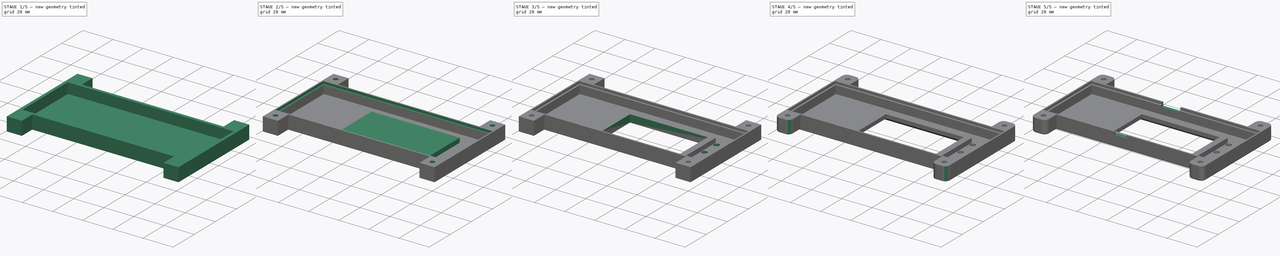
[diagram: build sequence overview — one tinted view per stage of 5, left to right]
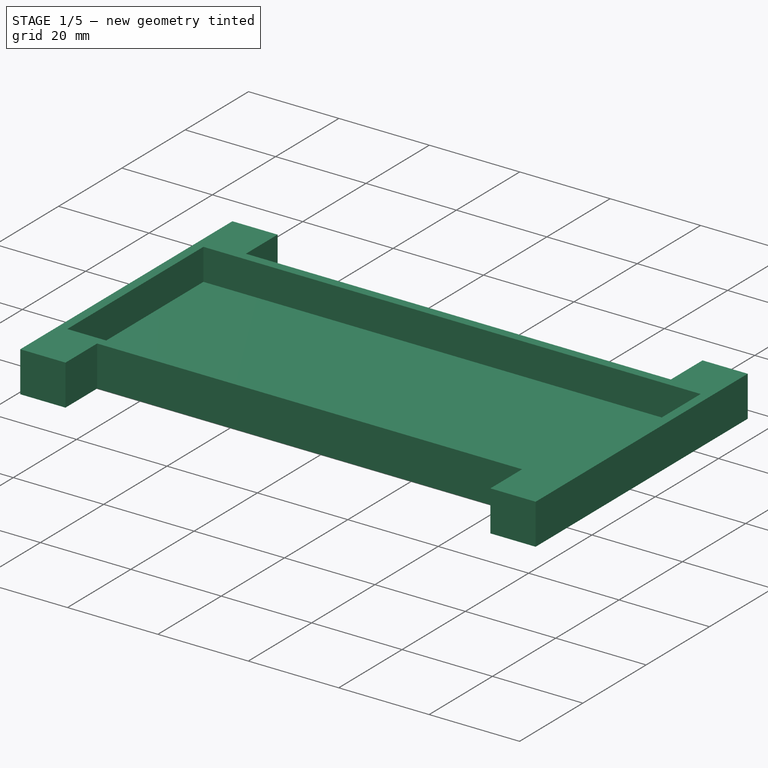
[diagram: stage 1 of 5 — iso view after this stage's code; geometry added in this stage tinted green]
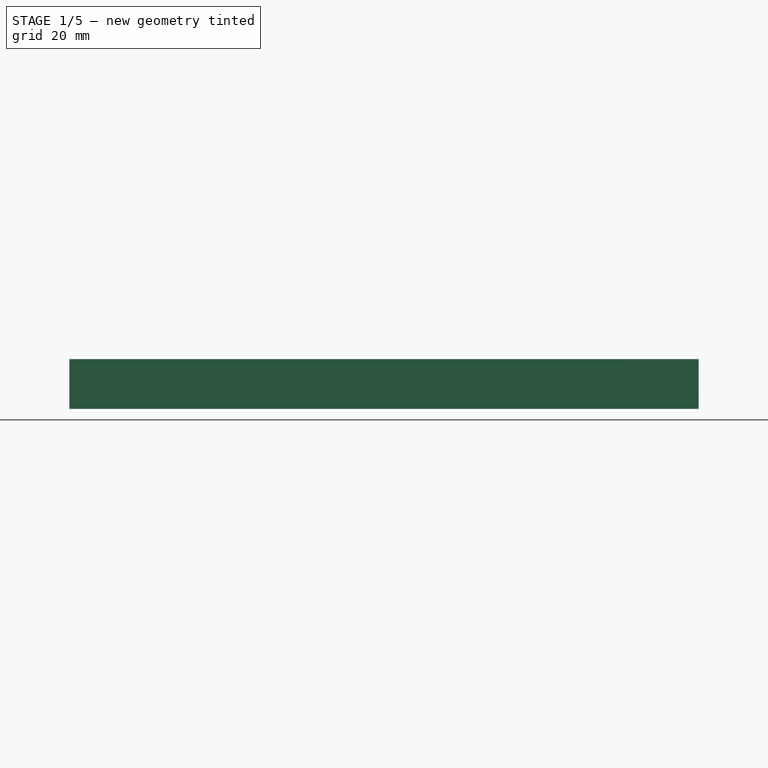
[diagram: stage 1 of 5 — front view after this stage's code; geometry added in this stage tinted green]
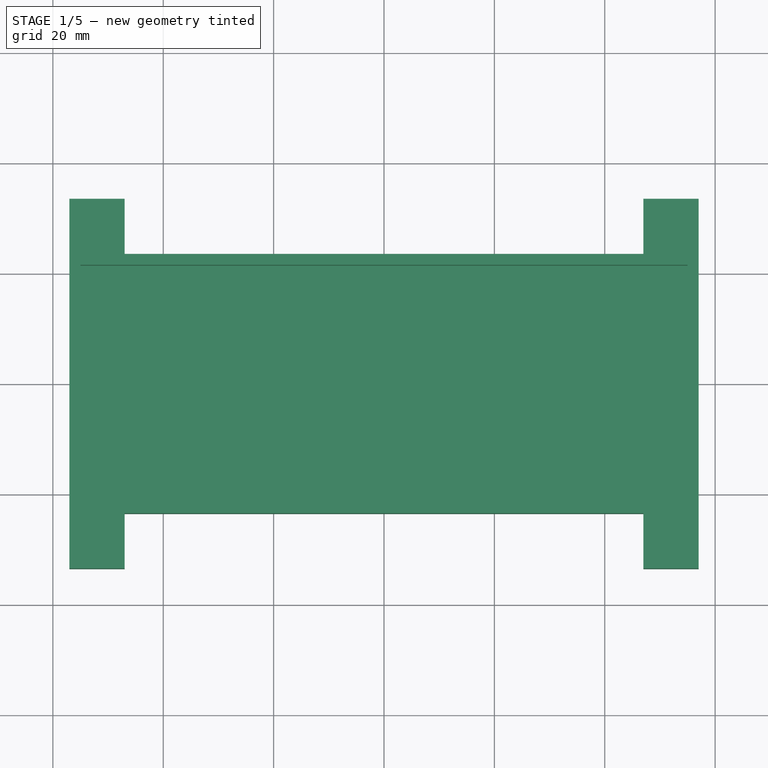
[diagram: stage 1 of 5 — top view after this stage's code; geometry added in this stage tinted green]
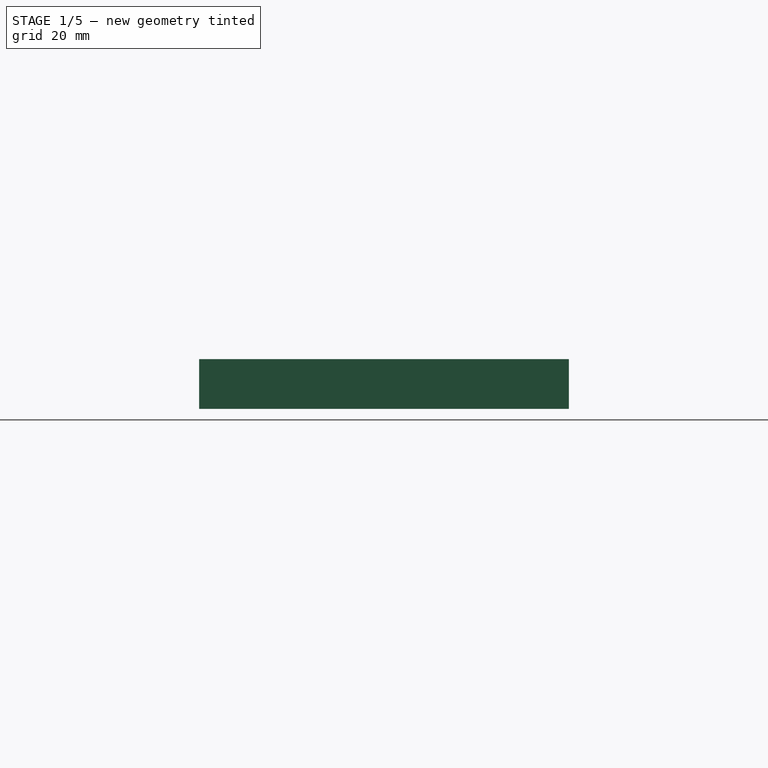
[diagram: stage 1 of 5 — right view after this stage's code; geometry added in this stage tinted green]
FCSTD DOCUMENT  (FreeCAD 1.0R38641 +678 (Git))
Label: BertheVario213_capot-v4
License: All rights reserved
LicenseURL: https://en.wikipedia.org/wiki/All_rights_reserved
objects: Sketcher::SketchObject×11, PartDesign::Pocket×7, PartDesign::Fillet×5, PartDesign::Pad×4, PartDesign::Chamfer×3, PartDesign::Thickness×1, PartDesign::Body×1
note: 83 computed .brp shape members not serialized (recipe doc carries the construction recipe); baked Part::Feature solids carry a one-line shape summary decoded from their .brp

FEATURE [Sketcher::SketchObject] Sketch  label="esquiise corps"
  ArcFitTolerance = 1e-06
  FullyConstrained = true
  MakeInternals = false
  sketch-geometry (4):
    g0: LineSegment StartX=-57 StartY=23.5 StartZ=0 EndX=-57 EndY=-23.5 EndZ=0
    g1: LineSegment StartX=-57 StartY=-23.5 StartZ=0 EndX=57 EndY=-23.5 EndZ=0
    g2: LineSegment StartX=57 StartY=-23.5 StartZ=0 EndX=57 EndY=23.5 EndZ=0
    g3: LineSegment StartX=57 StartY=23.5 StartZ=0 EndX=-57 EndY=23.5 EndZ=0
  constraints (11):
    c: Coincident(g0,g1)
    c: Coincident(g1,g2)
    c: Coincident(g2,g3)
    c: Coincident(g3,g0)
    c: Vertical(g0)
    c: Vertical(g2)
    c: Horizontal(g1)
    c: Horizontal(g3)
    c: DistanceY(g0,g0) = 47
    c: DistanceX(g3,g3) = 114
    c: Symmetric(g0,g2,g-1)
FEATURE [PartDesign::Pad] Pad  label="protrusion corps"
  Direction = (0,0,1)
  Length = 9
  Length2 = 10
  Profile = -> Sketch
  ReferenceAxis = -> Sketch [N_Axis]
  Refine = true
  Suppressed = false
  Type = 0
FEATURE [PartDesign::Thickness] Thickness  label="cavite corps"
  Base = -> Pad [Face6]
  BaseFeature = -> Pad
  Intersection = false
  Join = 0
  Mode = 0
  Refine = true
  Reversed = true
  SupportTransform = false
  Suppressed = false
  Value = 2
FEATURE [Sketcher::SketchObject] Sketch004  label="esquisse embase vis 3-4"
  ArcFitTolerance = 1e-06
  FullyConstrained = true
  MakeInternals = false
  MapMode = 5
  Placement = pos=(0,-23.5,0) rot=(1,0,0;1.5708rad)
  sketch-geometry (8):
    g0: LineSegment StartX=-57 StartY=9 StartZ=0 EndX=-57 EndY=0 EndZ=0
    g1: LineSegment StartX=-57 StartY=0 StartZ=0 EndX=-47 EndY=0 EndZ=0
    g2: LineSegment StartX=-47 StartY=0 StartZ=0 EndX=-47 EndY=9 EndZ=0
    g3: LineSegment StartX=-47 StartY=9 StartZ=0 EndX=-57 EndY=9 EndZ=0
    g4: LineSegment StartX=47 StartY=9 StartZ=0 EndX=47 EndY=0 EndZ=0
    g5: LineSegment StartX=47 StartY=0 StartZ=0 EndX=57 EndY=0 EndZ=0
    g6: LineSegment StartX=57 StartY=0 StartZ=0 EndX=57 EndY=9 EndZ=0
    g7: LineSegment StartX=57 StartY=9 StartZ=0 EndX=47 EndY=9 EndZ=0
  constraints (22):
    c: Coincident(g0,g1)
    c: Coincident(g1,g2)
    c: Coincident(g2,g3)
    c: Coincident(g3,g0)
    c: Vertical(g0)
    c: Vertical(g2)
    c: Horizontal(g1)
    c: Horizontal(g3)
    c: Coincident(g4,g5)
    c: Coincident(g5,g6)
    c: Coincident(g6,g7)
    c: Coincident(g7,g4)
    c: Vertical(g4)
    c: Vertical(g6)
    c: Horizontal(g5)
    c: Horizontal(g7)
    c: Equal(g3,g7)
    c: Equal(g2,g4)
    c: Distance(g3,g3) = 10
    c: DistanceY(g2,g2) = 9
    c: Coincident(g0,g-4)
    c: Coincident(g5,g-3)
FEATURE [PartDesign::Pad] Pad001  label="protusion embase vis 3-4"
  BaseFeature = -> Thickness
  Direction = (0,-1,2e-16)
  Length = 10
  Length2 = 10
  Profile = -> Sketch004
  ReferenceAxis = -> Sketch004 [N_Axis]
  Refine = true
  Suppressed = false
  Type = 0
FEATURE [Sketcher::SketchObject] Sketch005  label="esquisse embase vis 1-2"
  ArcFitTolerance = 1e-06
  AttachmentSupport = -> [Pad001]
  ExternalGeometry = -> [Pad001]
  FullyConstrained = true
  MakeInternals = false
  MapMode = 5
  Placement = pos=(0,23.5,0) rot=(0,0.707107,0.707107;3.14159rad)
  sketch-geometry (8):
    g0: LineSegment StartX=-57 StartY=9 StartZ=0 EndX=-57 EndY=0 EndZ=0
    g1: LineSegment StartX=-57 StartY=0 StartZ=0 EndX=-47 EndY=0 EndZ=0
    g2: LineSegment StartX=-47 StartY=0 StartZ=0 EndX=-47 EndY=9 EndZ=0
    g3: LineSegment StartX=-47 StartY=9 StartZ=0 EndX=-57 EndY=9 EndZ=0
    g4: LineSegment StartX=47 StartY=9 StartZ=0 EndX=47 EndY=0 EndZ=0
    g5: LineSegment StartX=47 StartY=0 StartZ=0 EndX=57 EndY=0 EndZ=0
    g6: LineSegment StartX=57 StartY=0 StartZ=0 EndX=57 EndY=9 EndZ=0
    g7: LineSegment StartX=57 StartY=9 StartZ=0 EndX=47 EndY=9 EndZ=0
  constraints (22):
    c: Coincident(g0,g1)
    c: Coincident(g1,g2)
    c: Coincident(g2,g3)
    c: Coincident(g3,g0)
    c: Vertical(g0)
    c: Vertical(g2)
    c: Horizontal(g1)
    c: Horizontal(g3)
    c: Coincident(g4,g5)
    c: Coincident(g5,g6)
    c: Coincident(g6,g7)
    c: Coincident(g7,g4)
    c: Vertical(g4)
    c: Vertical(g6)
    c: Horizontal(g5)
    c: Horizontal(g7)
    c: Equal(g3,g7)
    c: Equal(g2,g4)
    c: DistanceY(g2,g2) = 9
    c: DistanceX(g3,g3) = 10
    c: Coincident(g0,g-4)
    c: Coincident(g5,g-3)
FEATURE [PartDesign::Pad] Pad002  label="protusion embase vis 1-2"
  BaseFeature = -> Pad001
  Direction = (0,1,-2e-16)
  Length = 10
  Length2 = 10
  Profile = -> Sketch005
  ReferenceAxis = -> Sketch005 [N_Axis]
  Refine = true
  Suppressed = false
  Type = 0
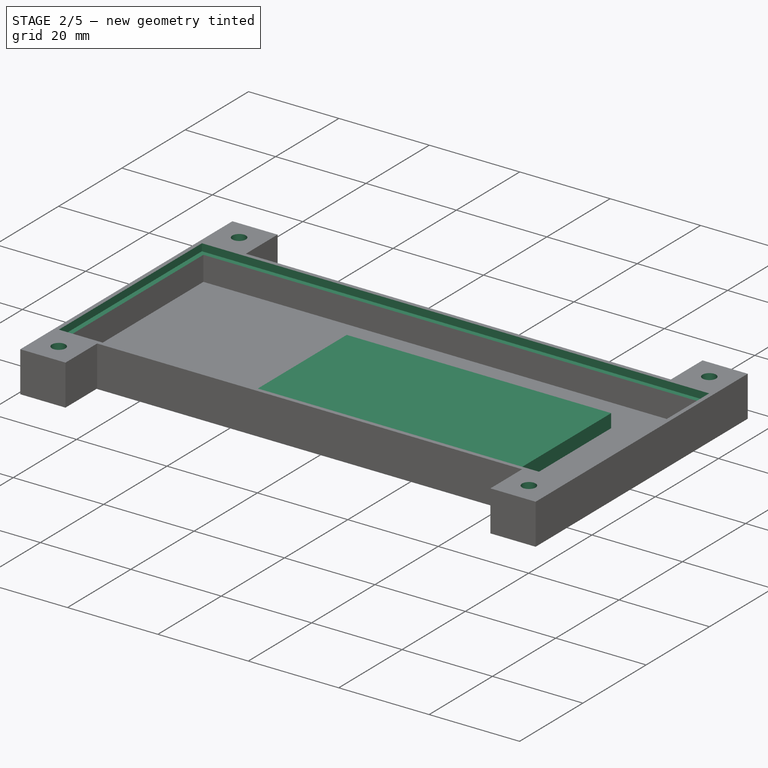
[diagram: stage 2 of 5 — iso view after this stage's code; geometry added in this stage tinted green]
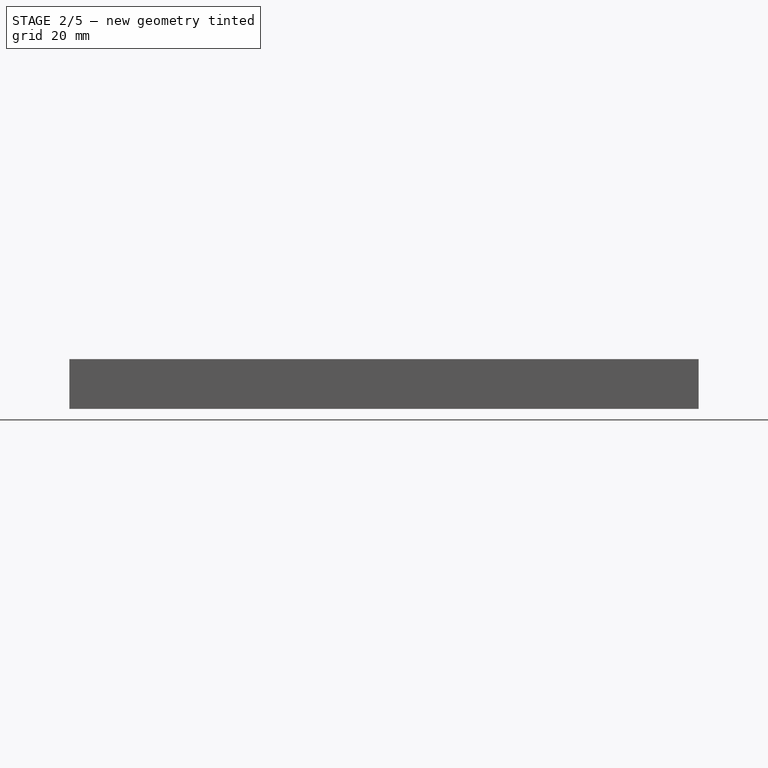
[diagram: stage 2 of 5 — front view after this stage's code; geometry added in this stage tinted green]
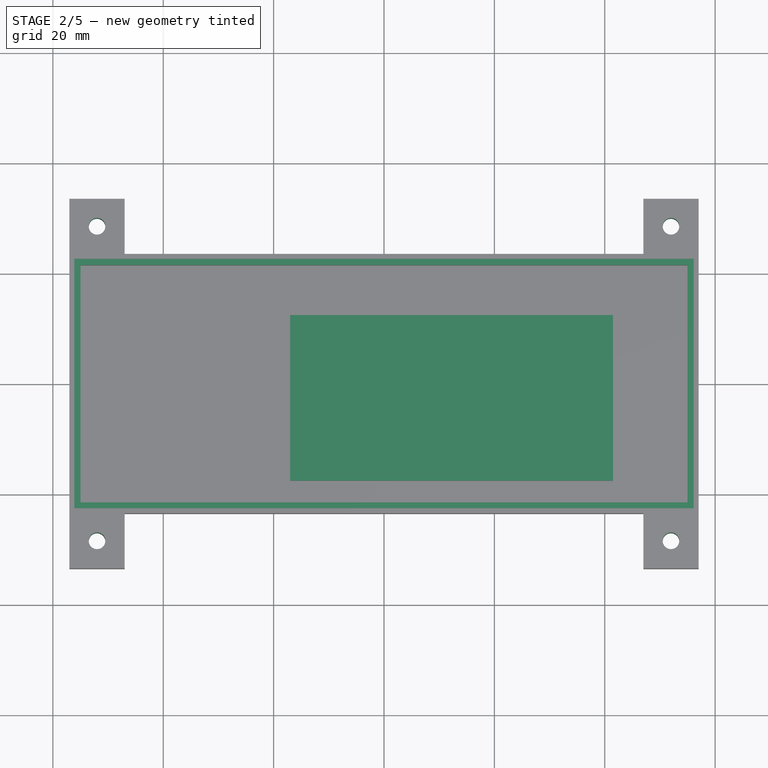
[diagram: stage 2 of 5 — top view after this stage's code; geometry added in this stage tinted green]
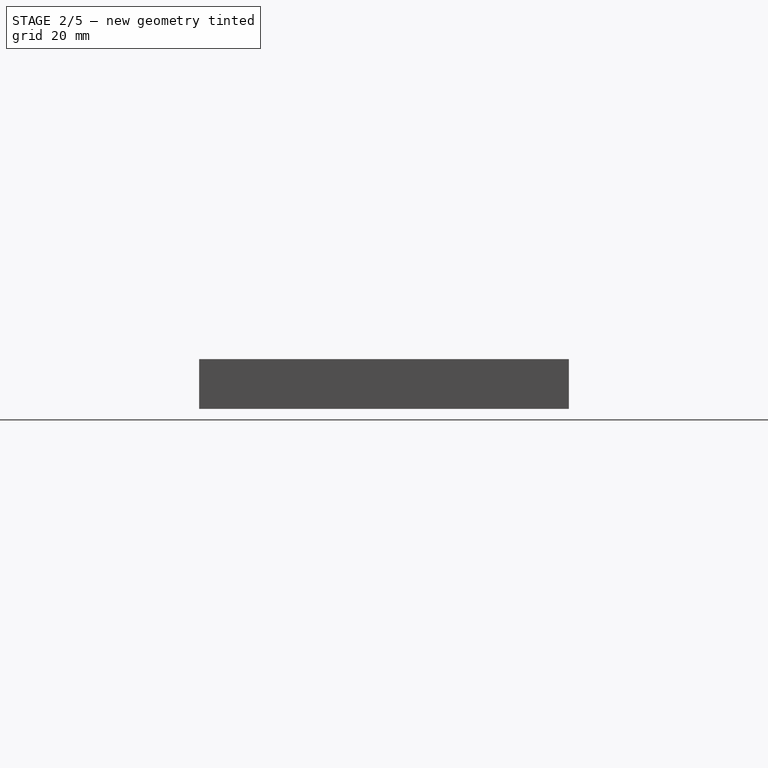
[diagram: stage 2 of 5 — right view after this stage's code; geometry added in this stage tinted green]
FEATURE [Sketcher::SketchObject] Sketch006  label="esquisse rebord corps"
  ArcFitTolerance = 1e-06
  AttachmentSupport = -> [Pad002]
  ExternalGeometry = -> [Pad002]
  FullyConstrained = true
  MakeInternals = false
  MapMode = 5
  Placement = pos=(0,0,9) rot=(0,0,1;0rad)
  sketch-geometry (4):
    g0: LineSegment StartX=-56.1 StartY=22.6 StartZ=0 EndX=-56.1 EndY=-22.6 EndZ=0
    g1: LineSegment StartX=-56.1 StartY=-22.6 StartZ=0 EndX=56.1 EndY=-22.6 EndZ=0
    g2: LineSegment StartX=56.1 StartY=-22.6 StartZ=0 EndX=56.1 EndY=22.6 EndZ=0
    g3: LineSegment StartX=56.1 StartY=22.6 StartZ=0 EndX=-56.1 EndY=22.6 EndZ=0
  constraints (11):
    c: Coincident(g0,g1)
    c: Coincident(g1,g2)
    c: Coincident(g2,g3)
    c: Coincident(g3,g0)
    c: Vertical(g0)
    c: Vertical(g2)
    c: Horizontal(g1)
    c: Horizontal(g3)
    c: Symmetric(g2,g0,g-1)
    c: DistanceY(g-6,g0) = 1.1
    c: DistanceX(g0,g-4) = 1.1
FEATURE [PartDesign::Pocket] Pocket  label="cavite rebord corps"
  BaseFeature = -> Pad002
  Direction = (0,0,-1)
  Length = 1.6
  Length2 = 5
  Profile = -> Sketch006
  ReferenceAxis = -> Sketch006 [N_Axis]
  Refine = true
  Suppressed = false
  Type = 0
FEATURE [Sketcher::SketchObject] Sketch007  label="esquisse trou vis"
  ArcFitTolerance = 1e-06
  AttachmentSupport = -> [Pocket]
  ExternalGeometry = -> [Pocket]
  FullyConstrained = true
  MakeInternals = false
  MapMode = 5
  Placement = pos=(0,0,-1e-16) rot=(1,0,0;3.14159rad)
  sketch-geometry (4):
    g0: Circle CenterX=-52 CenterY=28.5 CenterZ=0 NormalX=0 NormalY=0 NormalZ=1 AngleXU=0 Radius=1.5
    g1: Circle CenterX=52 CenterY=28.5 CenterZ=0 NormalX=0 NormalY=0 NormalZ=1 AngleXU=0 Radius=1.5
    g2: Circle CenterX=52 CenterY=-28.5 CenterZ=0 NormalX=0 NormalY=0 NormalZ=1 AngleXU=0 Radius=1.5
    g3: Circle CenterX=-52 CenterY=-28.5 CenterZ=0 NormalX=0 NormalY=0 NormalZ=1 AngleXU=0 Radius=1.5
  constraints (8):
    c: Equal(g0,g1)
    c: Equal(g1,g2)
    c: Equal(g2,g3)
    c: Diameter(g0) = 3
    c: Symmetric(g-3,g-4,g0)
    c: Symmetric(g-9,g-10,g3)
    c: Symmetric(g-7,g-8,g2)
    c: Symmetric(g-5,g-6,g1)
FEATURE [PartDesign::Pocket] Pocket001  label="trou vis"
  BaseFeature = -> Pocket
  Direction = (0,0,1)
  Length = 9
  Length2 = 5
  Profile = -> Sketch007
  ReferenceAxis = -> Sketch007 [N_Axis]
  Refine = true
  Suppressed = false
  Type = 0
FEATURE [Sketcher::SketchObject] Sketch008  label="esquisse trou ecran"
  ArcFitTolerance = 1e-06
  AttachmentSupport = -> [Pocket001]
  ExternalGeometry = -> [Pocket001]
  FullyConstrained = true
  MakeInternals = false
  MapMode = 5
  Placement = pos=(0,0,-1e-16) rot=(1,0,0;3.14159rad)
  sketch-geometry (4):
    g0: LineSegment StartX=-14 StartY=15.5 StartZ=0 EndX=-14 EndY=-10.5 EndZ=0
    g1: LineSegment StartX=-14 StartY=-10.5 StartZ=0 EndX=37.5 EndY=-10.5 EndZ=0
    g2: LineSegment StartX=37.5 StartY=-10.5 StartZ=0 EndX=37.5 EndY=15.5 EndZ=0
    g3: LineSegment StartX=37.5 StartY=15.5 StartZ=0 EndX=-14 EndY=15.5 EndZ=0
  constraints (12):
    c: Coincident(g0,g1)
    c: Coincident(g1,g2)
    c: Coincident(g2,g3)
    c: Coincident(g3,g0)
    c: Vertical(g0)
    c: Vertical(g2)
    c: Horizontal(g1)
    c: Horizontal(g3)
    c: DistanceX(g1,g1) = 51.5
    c: DistanceY(g0,g0) = 26
    c: DistanceX(g0,g-3) = 71
    c: DistanceY(g1,g-5) = 34
FEATURE [PartDesign::Pocket] Pocket002  label="trou ecran"
  BaseFeature = -> Pocket001
  Direction = (0,0,1)
  Length = 7
  Length2 = 5
  Profile = -> Sketch008
  ReferenceAxis = -> Sketch008 [N_Axis]
  Refine = true
  Suppressed = false
  Type = 0
FEATURE [Sketcher::SketchObject] Sketch009  label="esquisse rebord ecran"
  ArcFitTolerance = 1e-06
  AttachmentSupport = -> [Pocket002]
  ExternalGeometry = -> [Pocket002]
  FullyConstrained = true
  MakeInternals = false
  MapMode = 5
  Placement = pos=(0,0,2) rot=(0,0,1;0rad)
  sketch-geometry (4):
    g0: LineSegment StartX=-17 StartY=12.5 StartZ=0 EndX=-17 EndY=-17.5 EndZ=0
    g1: LineSegment StartX=-17 StartY=-17.5 StartZ=0 EndX=41.5 EndY=-17.5 EndZ=0
    g2: LineSegment StartX=41.5 StartY=-17.5 StartZ=0 EndX=41.5 EndY=12.5 EndZ=0
    g3: LineSegment StartX=41.5 StartY=12.5 StartZ=0 EndX=-17 EndY=12.5 EndZ=0
  constraints (12):
    c: Coincident(g0,g1)
    c: Coincident(g1,g2)
    c: Coincident(g2,g3)
    c: Coincident(g3,g0)
    c: Vertical(g0)
    c: Vertical(g2)
    c: Horizontal(g1)
    c: Horizontal(g3)
    c: DistanceX(g0,g-4) = 3
    c: DistanceX(g-6,g2) = 4
    c: DistanceY(g0,g-5) = 2
    c: DistanceY(g-6,g2) = 2
FEATURE [PartDesign::Pad] Pad003  label="rebord ecran"
  BaseFeature = -> Pocket002
  Direction = (0,0,1)
  Length = 3
  Length2 = 10
  Profile = -> Sketch009
  ReferenceAxis = -> Sketch009 [N_Axis]
  Refine = true
  Suppressed = false
  Type = 0
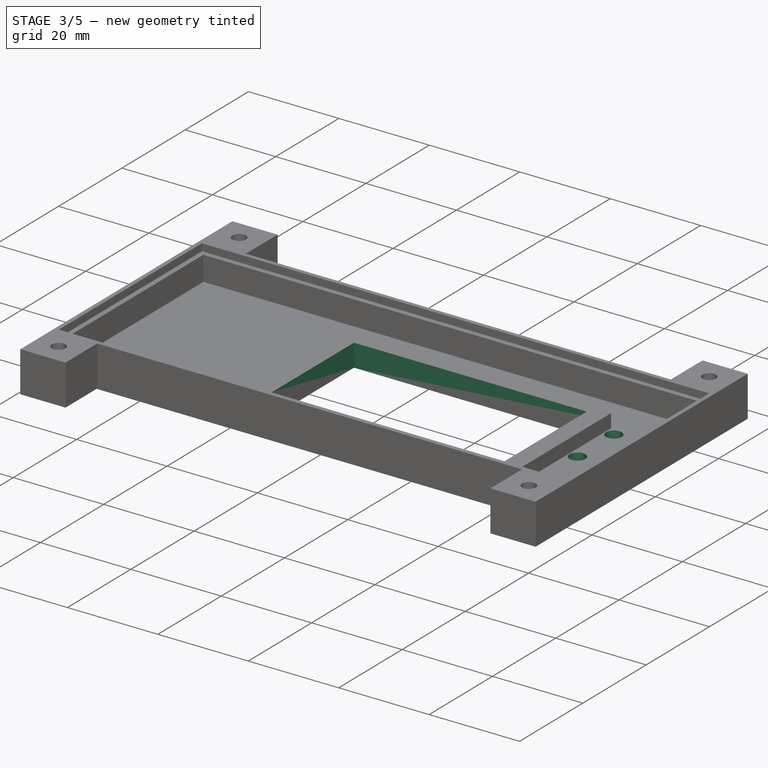
[diagram: stage 3 of 5 — iso view after this stage's code; geometry added in this stage tinted green]
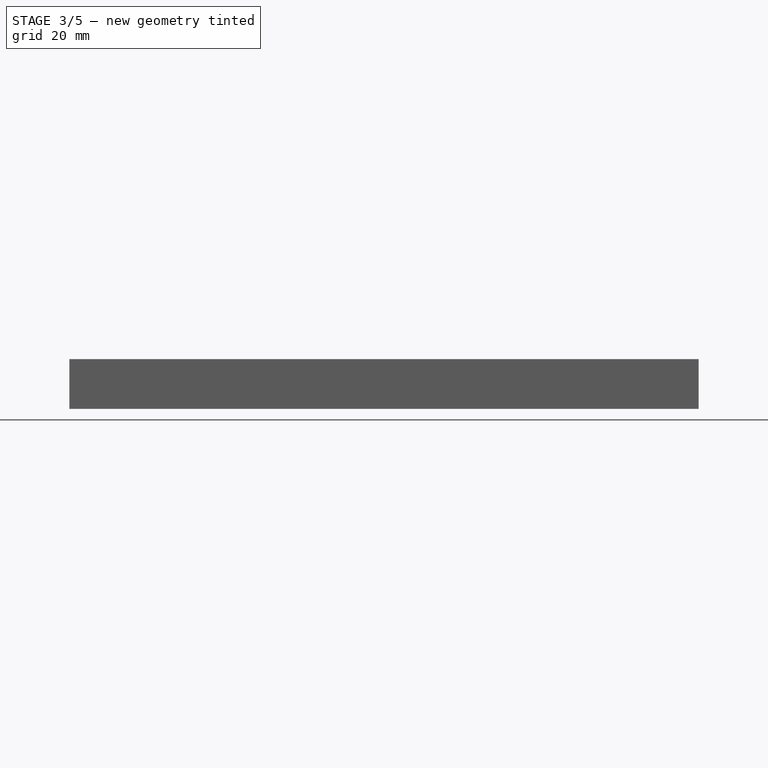
[diagram: stage 3 of 5 — front view after this stage's code; geometry added in this stage tinted green]
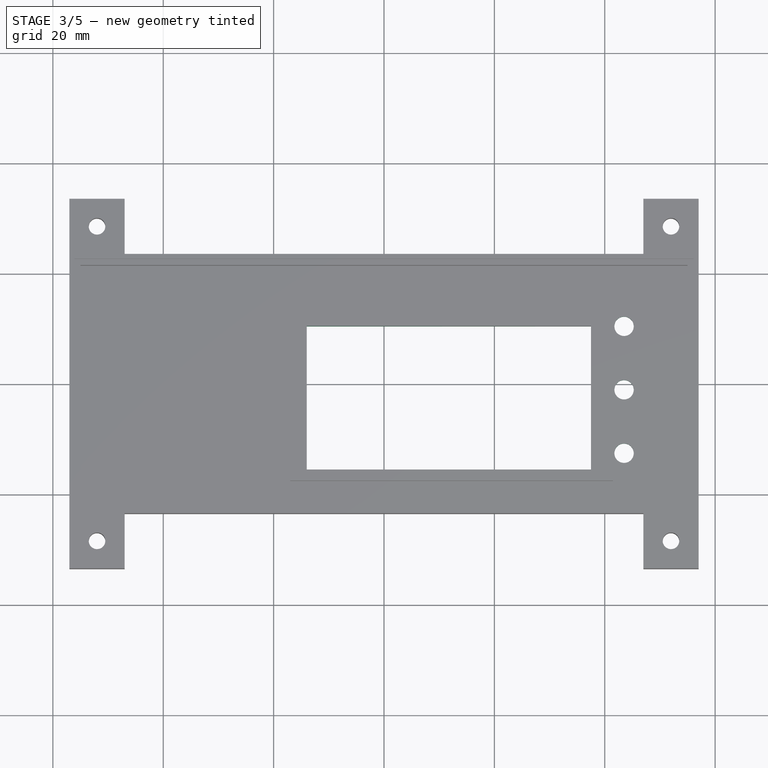
[diagram: stage 3 of 5 — top view after this stage's code; geometry added in this stage tinted green]
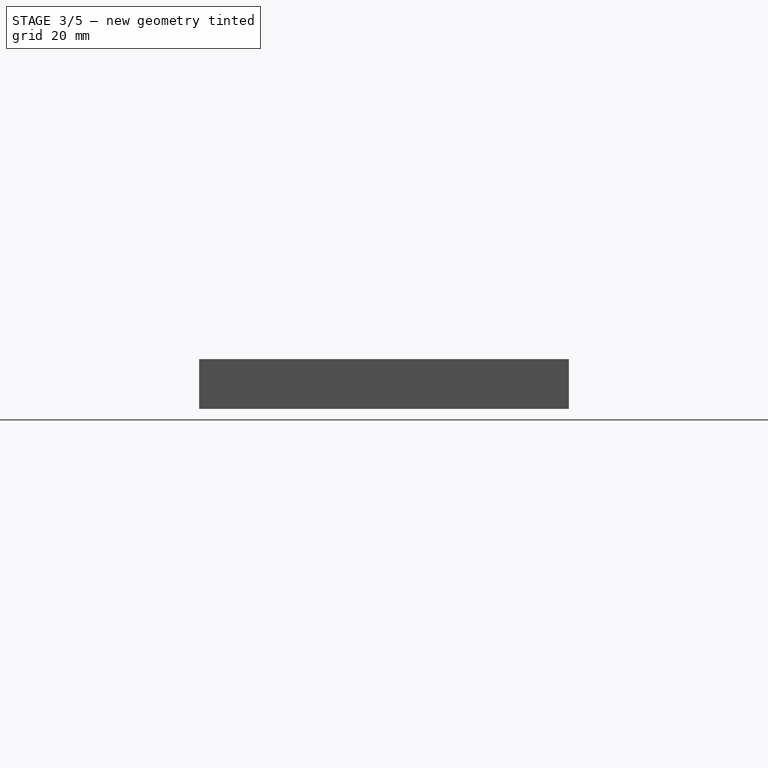
[diagram: stage 3 of 5 — right view after this stage's code; geometry added in this stage tinted green]
FEATURE [Sketcher::SketchObject] Sketch010  label="esquisse trou ecran interieur"
  ArcFitTolerance = 1e-06
  AttachmentSupport = -> [Pad003]
  ExternalGeometry = -> [Pad003]
  FullyConstrained = true
  MakeInternals = false
  MapMode = 5
  Placement = pos=(0,0,5) rot=(0,0,1;0rad)
  sketch-geometry (4):
    g0: LineSegment StartX=-14 StartY=10.5 StartZ=0 EndX=-14 EndY=-15.5 EndZ=0
    g1: LineSegment StartX=-14 StartY=-15.5 StartZ=0 EndX=37.5 EndY=-15.5 EndZ=0
    g2: LineSegment StartX=37.5 StartY=-15.5 StartZ=0 EndX=37.5 EndY=10.5 EndZ=0
    g3: LineSegment StartX=37.5 StartY=10.5 StartZ=0 EndX=-14 EndY=10.5 EndZ=0
  constraints (12):
    c: Coincident(g0,g1)
    c: Coincident(g1,g2)
    c: Coincident(g2,g3)
    c: Coincident(g3,g0)
    c: Vertical(g0)
    c: Vertical(g2)
    c: Horizontal(g1)
    c: Horizontal(g3)
    c: DistanceX(g-4,g0) = 3
    c: DistanceX(g2,g-3) = 4
    c: DistanceY(g0,g-4) = 2
    c: DistanceY(g-3,g1) = 2
FEATURE [PartDesign::Pocket] Pocket003  label="trou ecran interieur"
  BaseFeature = -> Pad003
  Direction = (0,0,-1)
  Length = 3
  Length2 = 5
  Profile = -> Sketch010
  ReferenceAxis = -> Sketch010 [N_Axis]
  Refine = true
  Suppressed = false
  Type = 0
FEATURE [Sketcher::SketchObject] Sketch011  label="esquisse trou bouton"
  ArcFitTolerance = 1e-06
  AttachmentSupport = -> [Pocket003]
  ExternalGeometry = -> [Pocket003]
  FullyConstrained = true
  MakeInternals = false
  MapMode = 5
  Placement = pos=(0,0,-1e-16) rot=(1,0,0;3.14159rad)
  sketch-geometry (3):
    g0: Circle CenterX=43.5 CenterY=-10.5 CenterZ=0 NormalX=0 NormalY=0 NormalZ=1 AngleXU=0 Radius=1.75
    g1: Circle CenterX=43.5 CenterY=1 CenterZ=0 NormalX=0 NormalY=0 NormalZ=1 AngleXU=0 Radius=1.75
    g2: Circle CenterX=43.5 CenterY=12.5 CenterZ=0 NormalX=0 NormalY=0 NormalZ=1 AngleXU=0 Radius=1.75
  constraints (9):
    c: Equal(g2,g1)
    c: Equal(g1,g0)
    c: Diameter(g2) = 3.5
    c: DistanceX(g-3,g0) = 57.5
    c: DistanceX(g1,g0) = 0
    c: DistanceX(g2,g1) = 0
    c: DistanceY(g0,g-4) = 34
    c: DistanceY(g0,g1) = 11.5
    c: DistanceY(g1,g2) = 11.5
FEATURE [PartDesign::Pocket] Pocket004  label="trou bouton"
  BaseFeature = -> Pocket003
  Direction = (0,0,1)
  Length = 2
  Length2 = 5
  Profile = -> Sketch011
  ReferenceAxis = -> Sketch011 [N_Axis]
  Refine = true
  Suppressed = false
  Type = 0
FEATURE [PartDesign::Chamfer] Chamfer  label="chamfrein a trou pour vis"
  Angle = 45
  Base = -> Pocket004 [Edge25,Edge16,Edge23,Edge26]
  BaseFeature = -> Pocket004
  ChamferType = 0
  FlipDirection = false
  Refine = true
  Size = 1
  Size2 = 1
  SupportTransform = false
  Suppressed = false
  UseAllEdges = false
FEATURE [PartDesign::Chamfer] Chamfer001  label="chamfrein vu altitude"
  Angle = 45
  Base = -> Chamfer [Edge19]
  BaseFeature = -> Chamfer
  ChamferType = 2
  FlipDirection = false
  Refine = true
  Size = 4
  Size2 = 1
  SupportTransform = false
  Suppressed = false
  UseAllEdges = false
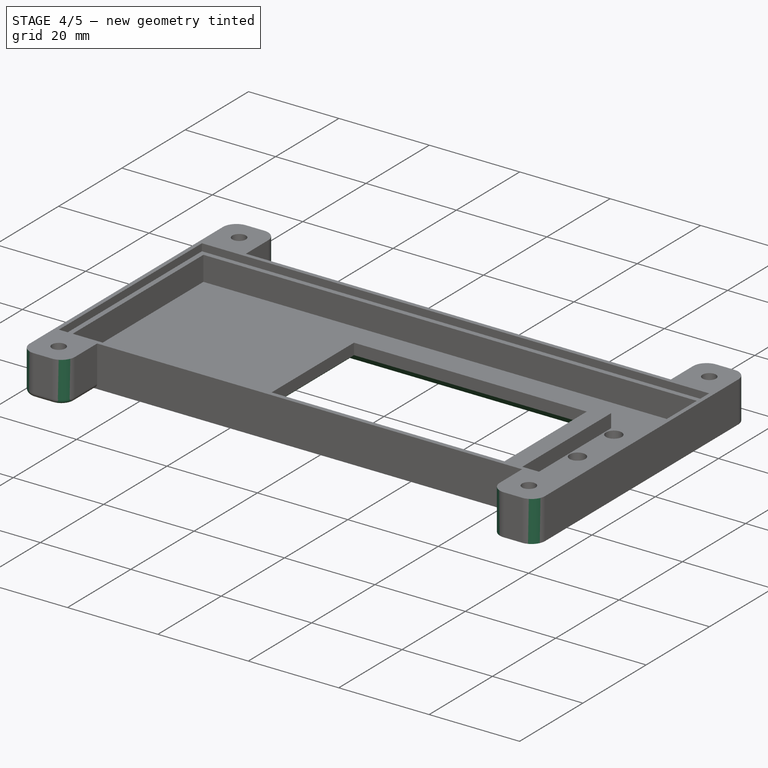
[diagram: stage 4 of 5 — iso view after this stage's code; geometry added in this stage tinted green]
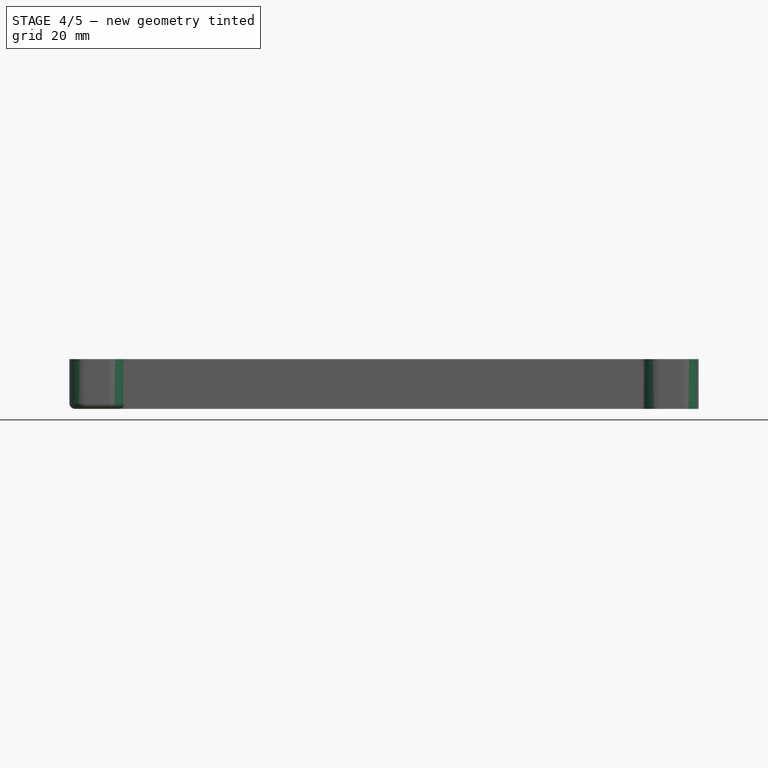
[diagram: stage 4 of 5 — front view after this stage's code; geometry added in this stage tinted green]
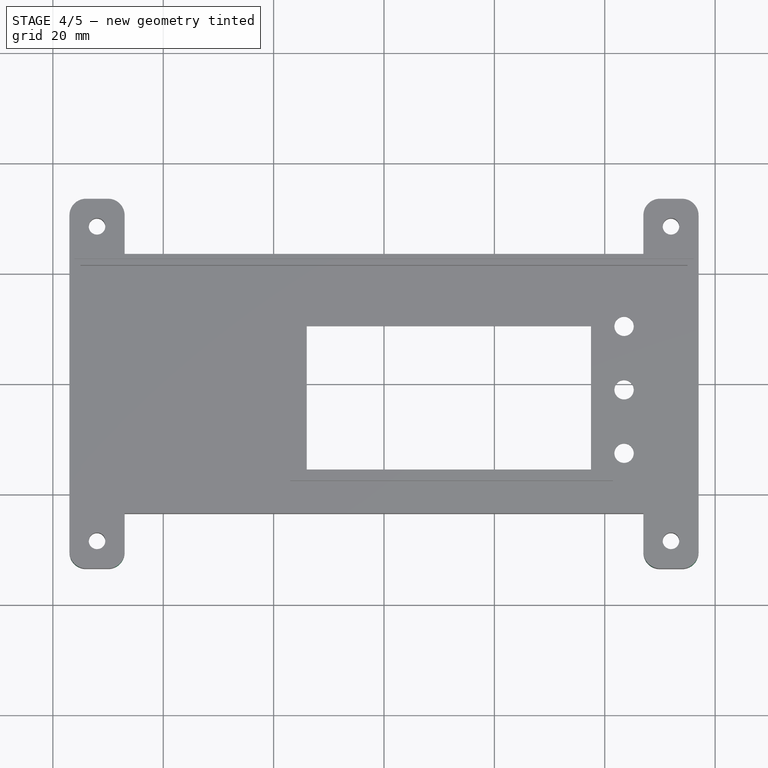
[diagram: stage 4 of 5 — top view after this stage's code; geometry added in this stage tinted green]
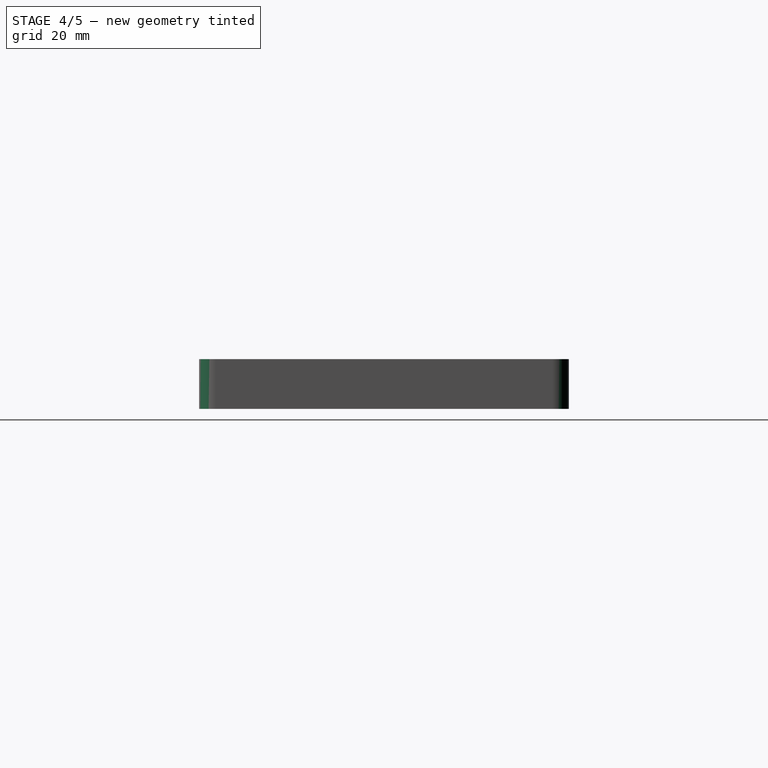
[diagram: stage 4 of 5 — right view after this stage's code; geometry added in this stage tinted green]
FEATURE [PartDesign::Chamfer] Chamfer002  label="chamfrein 3 cote ecran"
  Angle = 40
  Base = -> Chamfer001 [Edge6,Edge4,Edge2]
  BaseFeature = -> Chamfer001
  ChamferType = 2
  FlipDirection = false
  Refine = true
  Size = 3
  Size2 = 1
  SupportTransform = false
  Suppressed = false
  UseAllEdges = false
FEATURE [PartDesign::Fillet] Fillet  label="conge embase vis cote droit"
  Base = -> Chamfer002 [Edge55,Edge52,Edge39,Edge34]
  BaseFeature = -> Chamfer002
  Radius = 3
  Refine = true
  SupportTransform = false
  Suppressed = false
  UseAllEdges = false
FEATURE [PartDesign::Fillet] Fillet001  label="conge embase vis cote gauche"
  Base = -> Fillet [Edge29,Edge33,Edge46,Edge49]
  BaseFeature = -> Fillet
  Radius = 3
  Refine = true
  SupportTransform = false
  Suppressed = false
  UseAllEdges = false
FEATURE [PartDesign::Fillet] Fillet002  label="coge embase vis devant"
  Base = -> Fillet001 [Edge8,Edge9,Edge1]
  BaseFeature = -> Fillet001
  Radius = 1
  Refine = true
  SupportTransform = false
  Suppressed = false
  UseAllEdges = false
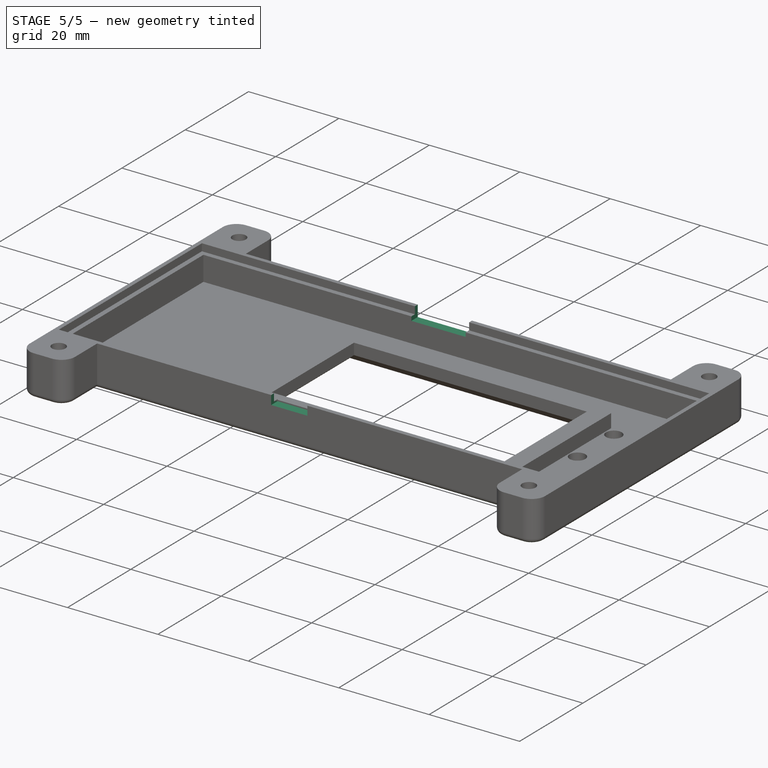
[diagram: stage 5 of 5 — iso view after this stage's code; geometry added in this stage tinted green]
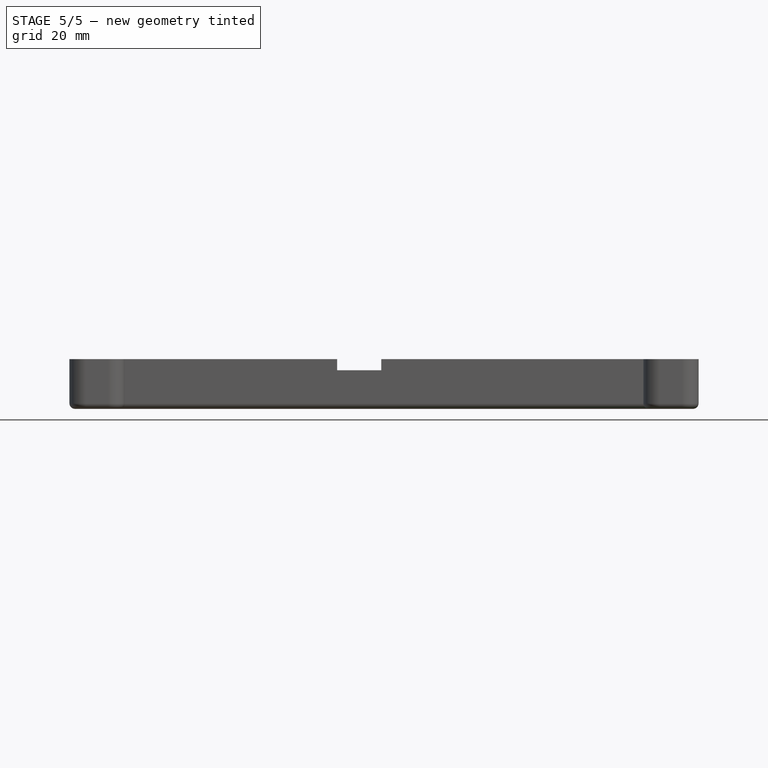
[diagram: stage 5 of 5 — front view after this stage's code; geometry added in this stage tinted green]
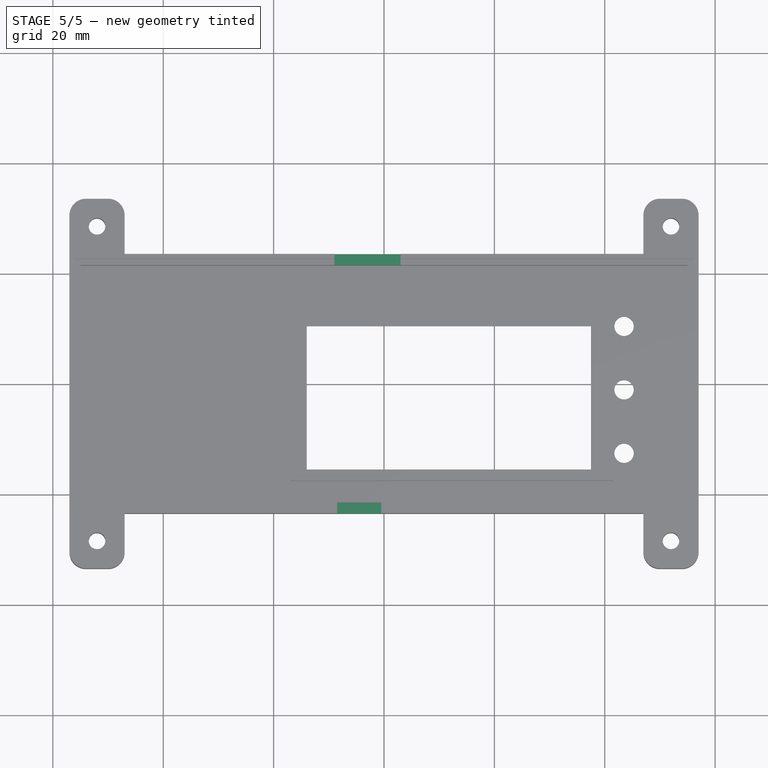
[diagram: stage 5 of 5 — top view after this stage's code; geometry added in this stage tinted green]
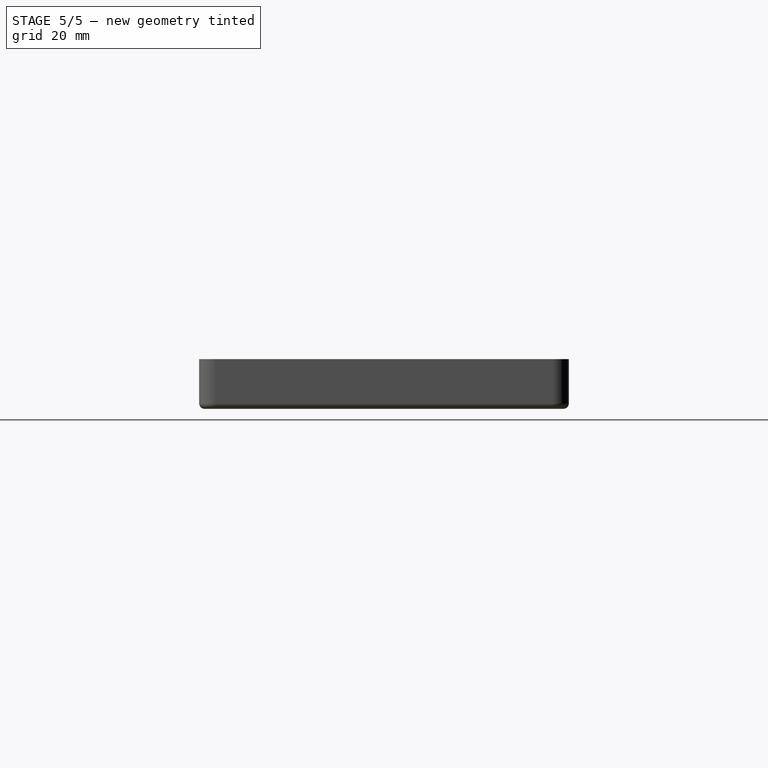
[diagram: stage 5 of 5 — right view after this stage's code; geometry added in this stage tinted green]
FEATURE [PartDesign::Fillet] Fillet003  label="conge embase vis derriere"
  Base = -> Fillet002 [Edge4,Edge12,Edge20]
  BaseFeature = -> Fillet002
  Radius = 1
  Refine = true
  SupportTransform = false
  Suppressed = false
  UseAllEdges = false
FEATURE [PartDesign::Fillet] Fillet004  label="conge embase vis cote inter embase"
  Base = -> Fillet003 [Edge2,Edge23]
  BaseFeature = -> Fillet003
  Radius = 1
  Refine = true
  SupportTransform = false
  Suppressed = false
  UseAllEdges = false
FEATURE [Sketcher::SketchObject] Sketch012  label="esquisse alim"
  ArcFitTolerance = 1e-06
  AttachmentSupport = -> [Fillet004]
  ExternalGeometry = -> [Fillet004]
  FullyConstrained = true
  MakeInternals = false
  MapMode = 5
  Placement = pos=(0,23.5,0) rot=(0,0.707107,0.707107;3.14159rad)
  sketch-geometry (4):
    g0: LineSegment StartX=-3 StartY=9 StartZ=0 EndX=-3 EndY=6.5 EndZ=0
    g1: LineSegment StartX=-3 StartY=6.5 StartZ=0 EndX=9 EndY=6.5 EndZ=0
    g2: LineSegment StartX=9 StartY=6.5 StartZ=0 EndX=9 EndY=9 EndZ=0
    g3: LineSegment StartX=9 StartY=9 StartZ=0 EndX=-3 EndY=9 EndZ=0
  constraints (12):
    c: Coincident(g0,g1)
    c: Coincident(g1,g2)
    c: Coincident(g2,g3)
    c: Coincident(g3,g0)
    c: Vertical(g0)
    c: Vertical(g2)
    c: Horizontal(g1)
    c: Horizontal(g3)
    c: Distance(g2,g1) = 2.5
    c: DistanceX(g3,g3) = 12
    c: DistanceY(g2,g-3) = 0
    c: DistanceX(g-4,g0) = 44
FEATURE [PartDesign::Pocket] Pocket005  label="trou alim"
  BaseFeature = -> Fillet004
  Direction = (0,-1,2e-16)
  Length = 2
  Length2 = 5
  Profile = -> Sketch012
  ReferenceAxis = -> Sketch012 [N_Axis]
  Refine = true
  Suppressed = false
  Type = 0
FEATURE [Sketcher::SketchObject] Sketch013  label="esquisse trou interrupteur"
  ArcFitTolerance = 1e-06
  AttachmentSupport = -> [Pocket005]
  ExternalGeometry = -> [Pocket005]
  FullyConstrained = true
  MakeInternals = false
  MapMode = 5
  Placement = pos=(0,-23.5,0) rot=(1,0,0;1.5708rad)
  sketch-geometry (4):
    g0: LineSegment StartX=-8.5 StartY=9 StartZ=0 EndX=-8.5 EndY=7 EndZ=0
    g1: LineSegment StartX=-8.5 StartY=7 StartZ=0 EndX=-0.5 EndY=7 EndZ=0
    g2: LineSegment StartX=-0.5 StartY=7 StartZ=0 EndX=-0.5 EndY=9 EndZ=0
    g3: LineSegment StartX=-0.5 StartY=9 StartZ=0 EndX=-8.5 EndY=9 EndZ=0
  constraints (12):
    c: Coincident(g0,g1)
    c: Coincident(g1,g2)
    c: Coincident(g2,g3)
    c: Coincident(g3,g0)
    c: Vertical(g0)
    c: Vertical(g2)
    c: Horizontal(g1)
    c: Horizontal(g3)
    c: Distance(g2,g1) = 2
    c: DistanceX(g0,g2) = 8
    c: DistanceY(g0,g-3) = 0
    c: DistanceX(g1,g-3) = 47.5
FEATURE [PartDesign::Pocket] Pocket006  label="trou interrupteur"
  BaseFeature = -> Pocket005
  Direction = (0,1,-2e-16)
  Length = 2
  Length2 = 5
  Profile = -> Sketch013
  ReferenceAxis = -> Sketch013 [N_Axis]
  Refine = true
  Suppressed = false
  Type = 0
FEATURE [PartDesign::Body] Body
  AllowCompound = false
  Group = -> [Sketch,Pad,Thickness,Sketch004,Pad001,Sketch005,Pad002,Sketch006,Pocket,Sketch007,Pocket001,Sketch008,Pocket002,Sketch009,Pad003,Sketch010,Pocket003,Sketch011,Pocket004,Chamfer,Chamfer001,Chamfer002,Fillet,Fillet001,Fillet002,Fillet003,Fillet004,Sketch012,Pocket005,Sketch013,Pocket006]
  Origin = -> Origin
  Tip = -> Pocket006
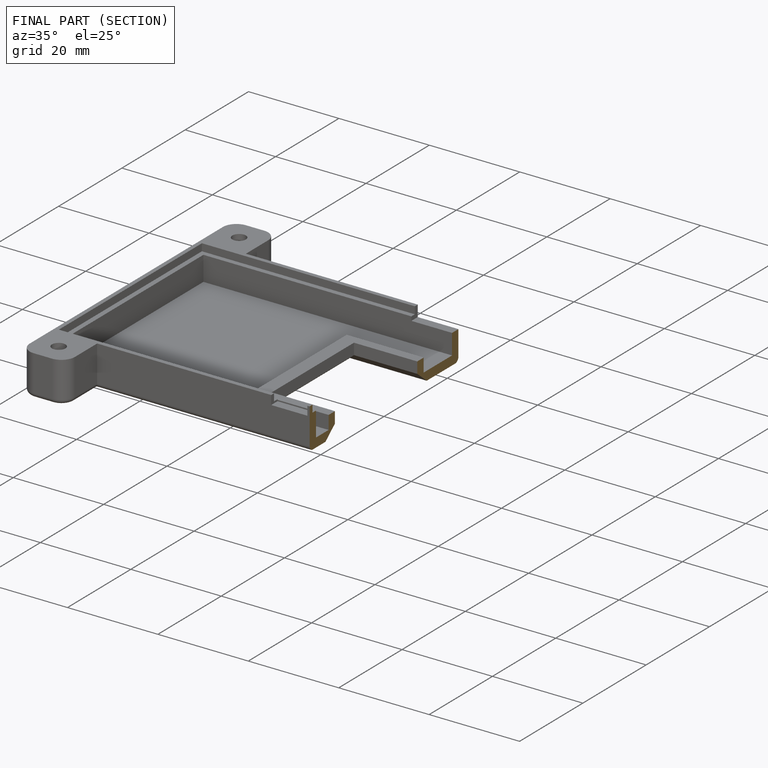
[diagram: finished part — half-section view (interior)]
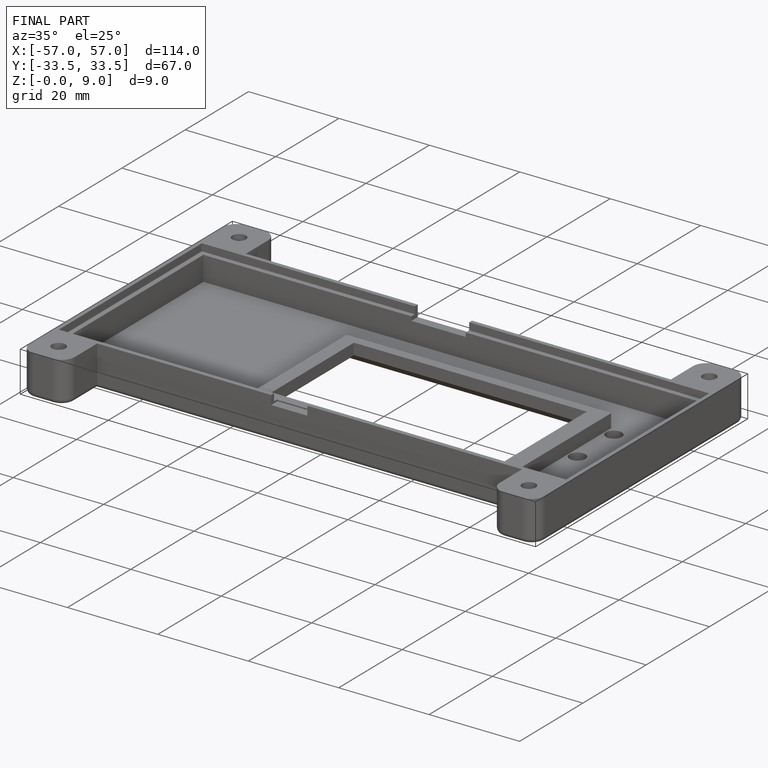
[diagram: finished part — iso view with bounding-box wireframe]
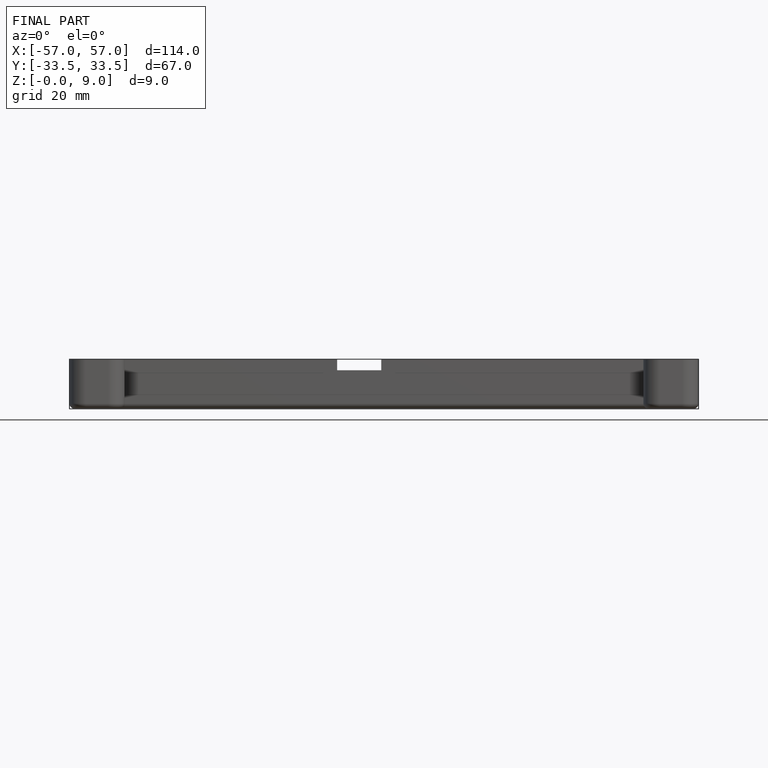
[diagram: finished part — front view with bounding-box wireframe]
